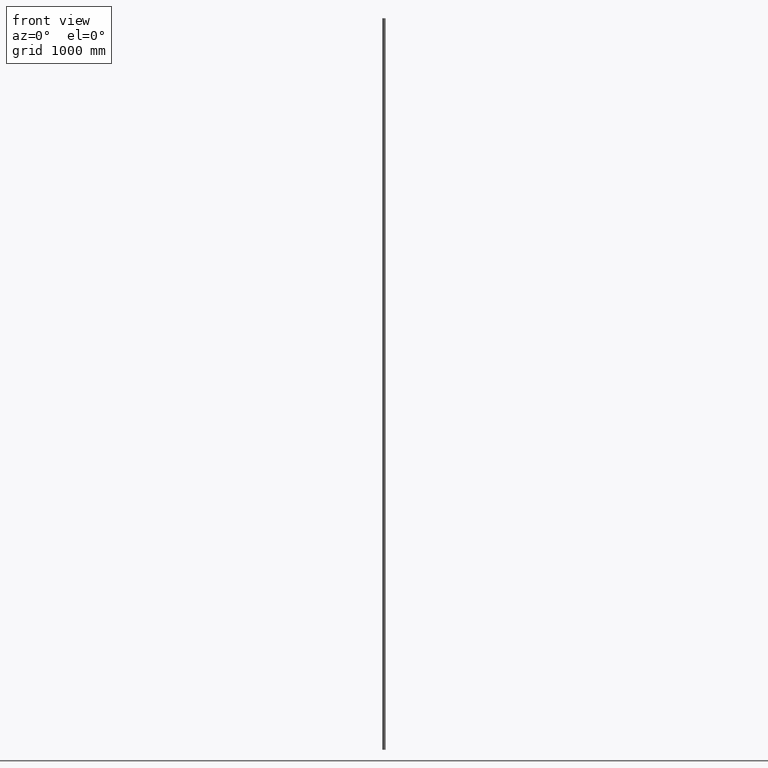
[diagram: clean part render]
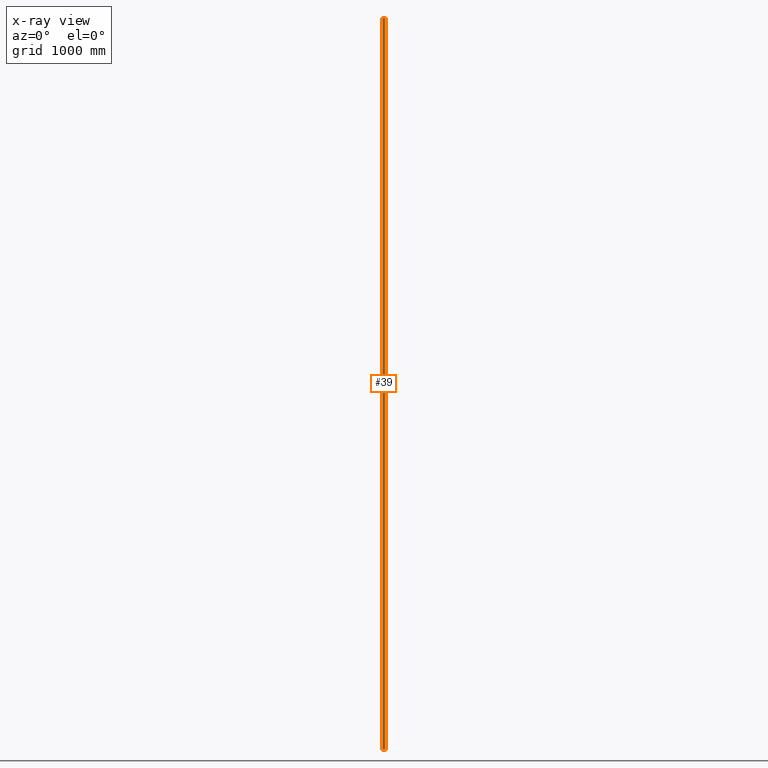
[diagram: x-ray — body ghosted, one internal face saturated and labeled with its STEP entity id]
A machine part, front view, then the same camera in x-ray: the body is ghosted and one INTERNAL B-rep face — a face not visible from any outside direction — is saturated and labeled: STEP entity #39.
In plain terms, the highlighted cylindrical surface (bore or boss wall) has radius 13.45 mm, axis along (-0, -0, -1).
Its self-contained STEP definition (entity closure, byte-faithful):
#39 = ADVANCED_FACE ( 'NONE', ( #1813, #3862 ), #199, .T. ) ;
#199 = CYLINDRICAL_SURFACE ( 'NONE', #3067, 13.44999999999999929 ) ;
#268 = CARTESIAN_POINT ( 'NONE',  ( 0.000000000000000000, 0.000000000000000000, -3000.000000000000000 ) ) ;
#442 = CARTESIAN_POINT ( 'NONE',  ( 0.000000000000000000, 0.000000000000000000, 3000.000000000000000 ) ) ;
#625 = DIRECTION ( 'NONE',  ( 0.000000000000000000, 0.000000000000000000, 1.000000000000000000 ) ) ;
#904 = VERTEX_POINT ( 'NONE', #6787 ) ;
#1370 = ORIENTED_EDGE ( 'NONE', *, *, #2469, .F. ) ;
#1813 = FACE_OUTER_BOUND ( 'NONE', #9634, .T. ) ;
#2322 = DIRECTION ( 'NONE',  ( 1.000000000000000000, 0.000000000000000000, 0.000000000000000000 ) ) ;
#2469 = EDGE_CURVE ( 'NONE', #3586, #3586, #4318, .T. ) ;
#2805 = CIRCLE ( 'NONE', #3641, 13.44999999999999929 ) ;
#3067 = AXIS2_PLACEMENT_3D ( 'NONE', #442, #3545, #10581 ) ;
#3545 = DIRECTION ( 'NONE',  ( -0.000000000000000000, -0.000000000000000000, -1.000000000000000000 ) ) ;
#3586 = VERTEX_POINT ( 'NONE', #5749 ) ;
#3641 = AXIS2_PLACEMENT_3D ( 'NONE', #268, #8324, #2322 ) ;
#3816 = DIRECTION ( 'NONE',  ( 1.000000000000000000, 0.000000000000000000, 0.000000000000000000 ) ) ;
#3856 = AXIS2_PLACEMENT_3D ( 'NONE', #11696, #625, #3816 ) ;
#3862 = FACE_OUTER_BOUND ( 'NONE', #11089, .T. ) ;
#4318 = CIRCLE ( 'NONE', #3856, 13.44999999999999929 ) ;
#5749 = CARTESIAN_POINT ( 'NONE',  ( 13.44999999999999929, 0.000000000000000000, 3000.000000000000000 ) ) ;
#6787 = CARTESIAN_POINT ( 'NONE',  ( 13.44999999999999929, 0.000000000000000000, -3000.000000000000000 ) ) ;
#8324 = DIRECTION ( 'NONE',  ( 0.000000000000000000, 0.000000000000000000, 1.000000000000000000 ) ) ;
#9092 = EDGE_CURVE ( 'NONE', #904, #904, #2805, .T. ) ;
#9634 = EDGE_LOOP ( 'NONE', ( #1370 ) ) ;
#10581 = DIRECTION ( 'NONE',  ( -1.000000000000000000, 0.000000000000000000, 0.000000000000000000 ) ) ;
#11089 = EDGE_LOOP ( 'NONE', ( #12551 ) ) ;
#11696 = CARTESIAN_POINT ( 'NONE',  ( 0.000000000000000000, 0.000000000000000000, 3000.000000000000000 ) ) ;
#12551 = ORIENTED_EDGE ( 'NONE', *, *, #9092, .T. ) ;